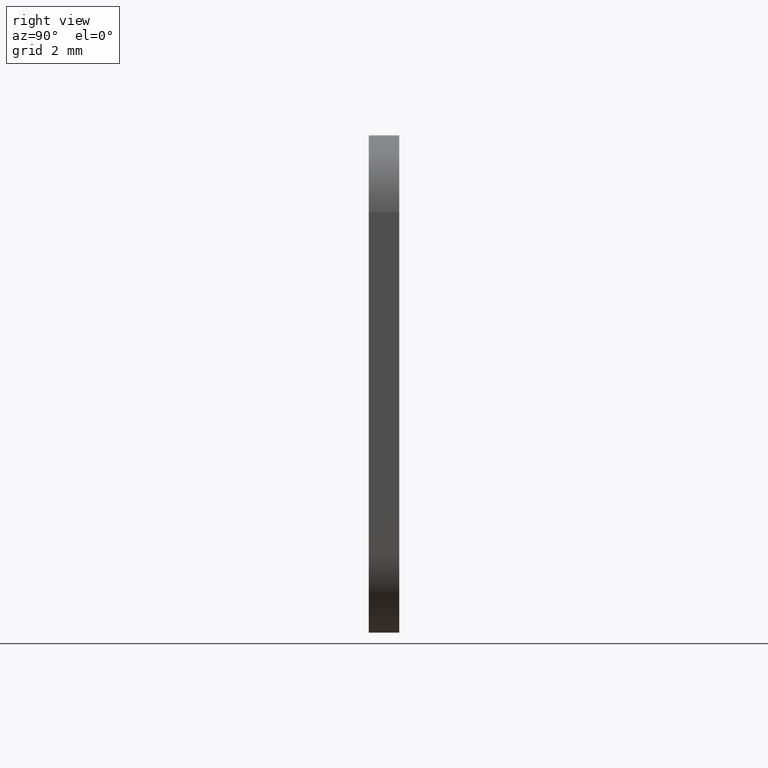
[diagram: clean part render]
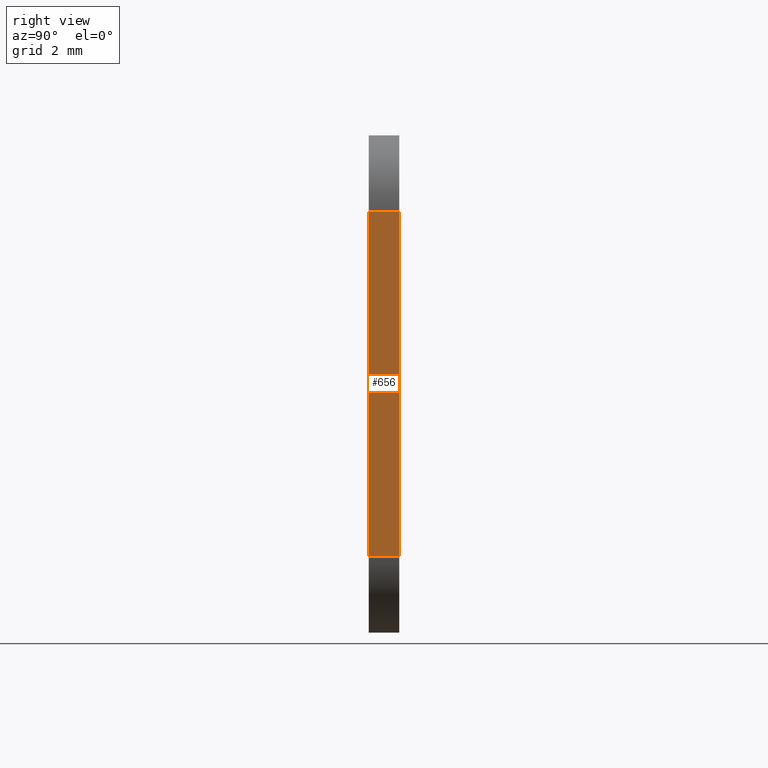
[diagram: same view with one face highlighted and labeled with its STEP entity id]
A machine part, right view. The second image highlights one B-rep face of the part: STEP entity #656.
In plain terms, the highlighted face is a freeform B-spline surface patch.
Its self-contained STEP definition (entity closure, byte-faithful):
#429=CARTESIAN_POINT('',(7.0,0.0,-4.500000000000000));
#430=VERTEX_POINT('',#429);
#444=CARTESIAN_POINT('',(7.0,0.0,4.500000000000000));
#445=VERTEX_POINT('',#444);
#446=CARTESIAN_POINT('',(7.0,0.0,-4.500000000000000));
#447=CARTESIAN_POINT('',(7.0,0.0,4.500000000000000));
#448=QUASI_UNIFORM_CURVE('',1,(#446,#447),.UNSPECIFIED.,.F.,.U.);
#449=EDGE_CURVE('',#430,#445,#448,.T.);
#515=CARTESIAN_POINT('',(7.0,0.800003000000049,4.500000000000000));
#516=VERTEX_POINT('',#515);
#532=CARTESIAN_POINT('',(7.0,0.800003000000049,-4.500000000000000));
#533=VERTEX_POINT('',#532);
#534=CARTESIAN_POINT('',(7.0,0.800003000000049,-4.500000000000000));
#535=CARTESIAN_POINT('',(7.0,0.800003000000049,4.500000000000000));
#536=QUASI_UNIFORM_CURVE('',1,(#534,#535),.UNSPECIFIED.,.F.,.U.);
#537=EDGE_CURVE('',#533,#516,#536,.T.);
#631=CARTESIAN_POINT('',(7.0,0.800003000000049,4.500000000000000));
#632=CARTESIAN_POINT('',(7.0,0.0,4.500000000000000));
#633=QUASI_UNIFORM_CURVE('',1,(#631,#632),.UNSPECIFIED.,.F.,.U.);
#634=EDGE_CURVE('',#516,#445,#633,.T.);
#641=CARTESIAN_POINT('',(7.0,-0.039960148299441,4.949549982556253));
#642=CARTESIAN_POINT('',(7.0,-0.039960148299441,-4.949550223955065));
#643=CARTESIAN_POINT('',(7.0,0.839963169757243,4.949549982556253));
#644=CARTESIAN_POINT('',(7.0,0.839963169757243,-4.949550223955065));
#645=B_SPLINE_SURFACE_WITH_KNOTS('',1,1,((#641,#643),(#642,#644)),.UNSPECIFIED.,.F.,.F.,.U.,(2,2),(2,2),(0.0,9.899100206511317),(0.041708334948495,0.958291687403247),.UNSPECIFIED.);
#646=ORIENTED_EDGE('',*,*,#449,.F.);
#647=CARTESIAN_POINT('',(7.0,0.800003000000049,-4.500000000000000));
#648=CARTESIAN_POINT('',(7.0,0.0,-4.500000000000000));
#649=QUASI_UNIFORM_CURVE('',1,(#647,#648),.UNSPECIFIED.,.F.,.U.);
#650=EDGE_CURVE('',#533,#430,#649,.T.);
#651=ORIENTED_EDGE('',*,*,#650,.F.);
#652=ORIENTED_EDGE('',*,*,#537,.T.);
#653=ORIENTED_EDGE('',*,*,#634,.T.);
#654=EDGE_LOOP('',(#646,#651,#652,#653));
#655=FACE_OUTER_BOUND('',#654,.T.);
#656=ADVANCED_FACE('',(#655),#645,.T.);